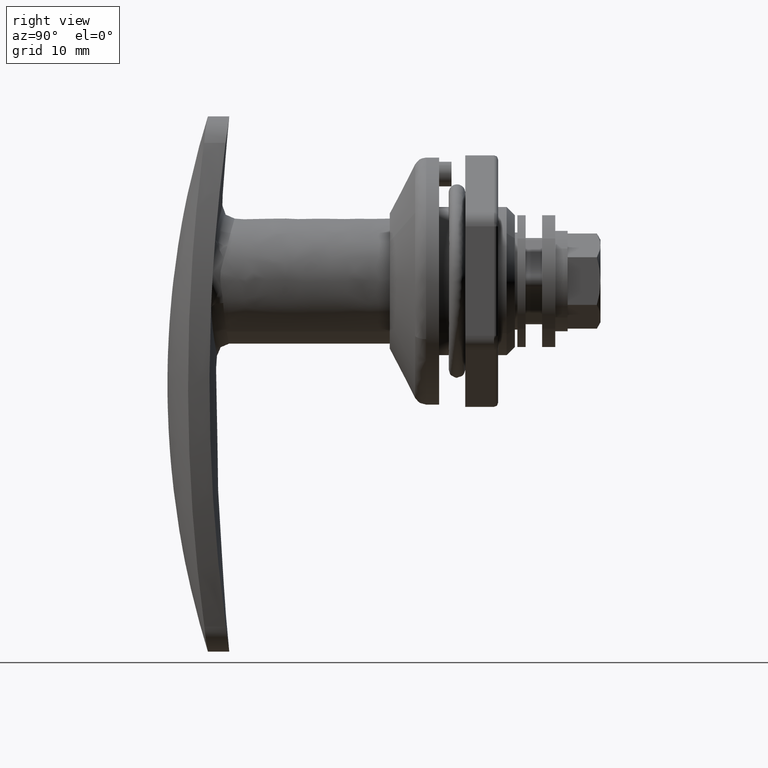
[diagram: clean part render]
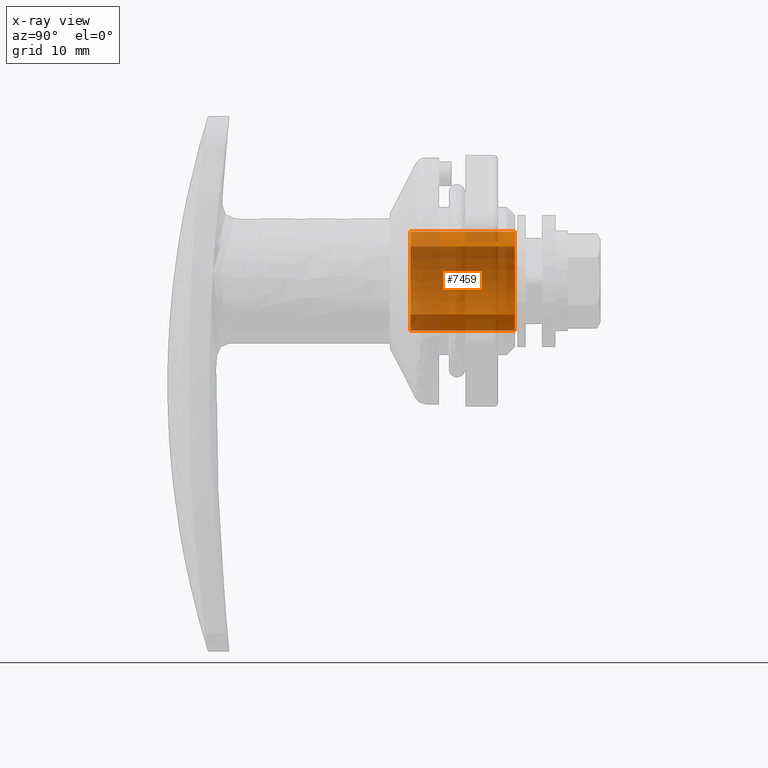
[diagram: x-ray — body ghosted, one internal face saturated and labeled with its STEP entity id]
A machine part, right view, then the same camera in x-ray: the body is ghosted and one INTERNAL B-rep face — a face not visible from any outside direction — is saturated and labeled: STEP entity #7459.
In plain terms, the highlighted face is a freeform B-spline surface patch.
Its self-contained STEP definition (entity closure, byte-faithful):
#7297=CARTESIAN_POINT('',(15.517500000000002,-4.299905833347363,4.184591954342180));
#7298=CARTESIAN_POINT('',(15.517500000000000,-4.180144609436389,4.307653411928088));
#7299=CARTESIAN_POINT('',(15.517500000000000,-4.053541245693960,4.423664020860743));
#7300=CARTESIAN_POINT('',(15.517499999999998,0.370122775166783,8.477205266554703));
#7301=CARTESIAN_POINT('',(15.517500000000000,4.423664020860743,4.053541245693960));
#7302=CARTESIAN_POINT('',(15.517499999999998,8.477205266554703,-0.370122775166783));
#7303=CARTESIAN_POINT('',(15.517500000000000,4.053541245693960,-4.423664020860743));
#7304=CARTESIAN_POINT('',(15.517499999999998,-0.370122775166783,-8.477205266554703));
#7305=CARTESIAN_POINT('',(15.517500000000000,-4.423664020860743,-4.053541245693960));
#7306=CARTESIAN_POINT('',(2.174562499999944,-4.299905833347363,4.184591954342180));
#7307=CARTESIAN_POINT('',(2.174562499999943,-4.180144609436389,4.307653411928088));
#7308=CARTESIAN_POINT('',(2.174562499999944,-4.053541245693960,4.423664020860743));
#7309=CARTESIAN_POINT('',(2.174562499999944,0.370122775166783,8.477205266554703));
#7310=CARTESIAN_POINT('',(2.174562499999944,4.423664020860743,4.053541245693960));
#7311=CARTESIAN_POINT('',(2.174562499999944,8.477205266554703,-0.370122775166783));
#7312=CARTESIAN_POINT('',(2.174562499999944,4.053541245693960,-4.423664020860743));
#7313=CARTESIAN_POINT('',(2.174562499999944,-0.370122775166783,-8.477205266554703));
#7314=CARTESIAN_POINT('',(2.174562499999944,-4.423664020860743,-4.053541245693960));
#7322=(BOUNDED_SURFACE()B_SPLINE_SURFACE(2,1,((#7297,#7306),(#7298,#7307),(#7299,#7308),(#7300,#7309),(#7301,#7310),(#7302,#7311),(#7303,#7312),(#7304,#7313),(#7305,#7314)),.UNSPECIFIED.,.F.,.F.,.U.)B_SPLINE_SURFACE_WITH_KNOTS((3,2,2,2,3),(2,2),(0.0,0.397645019878172,10.338770516832451,20.279896013786729,30.221021510741000),(0.0,13.342937500000060),.UNSPECIFIED.)GEOMETRIC_REPRESENTATION_ITEM()RATIONAL_B_SPLINE_SURFACE(((0.977505800795127,0.977505800795127),(0.988284271247462,0.988284271247462),(1.0,1.0),(0.707106781186548,0.707106781186548),(1.0,1.0),(0.707106781186548,0.707106781186548),(1.0,1.0),(0.707106781186548,0.707106781186548),(1.0,1.0)))REPRESENTATION_ITEM('')SURFACE());
#7323=CARTESIAN_POINT('',(15.199999999999999,0.0,6.0));
#7324=VERTEX_POINT('',#7323);
#7325=CARTESIAN_POINT('',(15.199999999999751,-4.299905718205324,4.184591894937329));
#7326=VERTEX_POINT('',#7325);
#7327=CARTESIAN_POINT('',(15.199999999999999,0.0,6.0));
#7328=CARTESIAN_POINT('',(15.200000000000040,-0.424467672618955,6.000067095287533));
#7329=CARTESIAN_POINT('',(15.199999999999870,-1.248399602522490,5.912210549357255));
#7330=CARTESIAN_POINT('',(15.199999999999850,-2.370802270925840,5.550073469835959));
#7331=CARTESIAN_POINT('',(15.199999999999880,-3.404948394419460,4.985944584329795));
#7332=CARTESIAN_POINT('',(15.199999999999701,-4.003916135543806,4.488831984891791));
#7333=CARTESIAN_POINT('',(15.199999999999751,-4.299905718205324,4.184591894937329));
#7334=B_SPLINE_CURVE_WITH_KNOTS('',3,(#7327,#7328,#7329,#7330,#7331,#7332,#7333),.UNSPECIFIED.,.F.,.U.,(4,1,1,1,4),(6.852791E-009,1.273396242282657,2.471883825434055,3.520565523340189,4.793961758768532),.UNSPECIFIED.);
#7335=EDGE_CURVE('',#7324,#7326,#7334,.T.);
#7336=ORIENTED_EDGE('',*,*,#7335,.T.);
#7337=CARTESIAN_POINT('',(2.499999999999945,-4.299905718517934,4.184591894616105));
#7338=VERTEX_POINT('',#7337);
#7339=CARTESIAN_POINT('',(15.199999999999751,-4.299905718205324,4.184591894937329));
#7340=CARTESIAN_POINT('',(2.499999999999945,-4.299905718517934,4.184591894616105));
#7341=QUASI_UNIFORM_CURVE('',1,(#7339,#7340),.UNSPECIFIED.,.F.,.U.);
#7342=EDGE_CURVE('',#7326,#7338,#7341,.T.);
#7343=ORIENTED_EDGE('',*,*,#7342,.T.);
#7344=CARTESIAN_POINT('',(2.499999999999945,0.0,6.0));
#7345=VERTEX_POINT('',#7344);
#7346=CARTESIAN_POINT('',(2.499999999999945,0.0,6.0));
#7347=CARTESIAN_POINT('',(2.499999999999942,-0.324589826507479,6.000020552062493));
#7348=CARTESIAN_POINT('',(2.499999999999950,-0.948795486600454,5.949226767049265));
#7349=CARTESIAN_POINT('',(2.499999999999946,-1.751925950248813,5.755061042708641));
#7350=CARTESIAN_POINT('',(2.499999999999943,-2.593590244484941,5.436333231344796));
#7351=CARTESIAN_POINT('',(2.499999999999941,-3.446786563827778,4.957006300138420));
#7352=CARTESIAN_POINT('',(2.499999999999953,-4.038723660203774,4.453020377927563));
#7353=CARTESIAN_POINT('',(2.499999999999945,-4.299905718517934,4.184591894616105));
#7354=B_SPLINE_CURVE_WITH_KNOTS('',3,(#7346,#7347,#7348,#7349,#7350,#7351,#7352,#7353),.UNSPECIFIED.,.F.,.U.,(4,1,1,1,1,4),(6.851919E-009,0.973772008683893,1.872648668017092,2.471883825664935,3.670377118583605,4.793961759216776),.UNSPECIFIED.);
#7355=EDGE_CURVE('',#7345,#7338,#7354,.T.);
#7356=ORIENTED_EDGE('',*,*,#7355,.F.);
#7357=CARTESIAN_POINT('',(2.499999999999945,5.999999999999981,0.000000495973088));
#7358=VERTEX_POINT('',#7357);
#7359=CARTESIAN_POINT('',(2.499999999999945,5.999999999999981,0.000000495973088));
#7360=CARTESIAN_POINT('',(2.499999999999945,6.000015298803461,0.343606049105662));
#7361=CARTESIAN_POINT('',(2.499999999999955,5.932412972354190,1.129017414033481));
#7362=CARTESIAN_POINT('',(2.499999999999925,5.609171153835491,2.243688417881025));
#7363=CARTESIAN_POINT('',(2.499999999999981,5.080800072388372,3.246869841662565));
#7364=CARTESIAN_POINT('',(2.499999999999905,4.509682843551666,3.987962432717692));
#7365=CARTESIAN_POINT('',(2.499999999999965,3.840907647167780,4.640556761082873));
#7366=CARTESIAN_POINT('',(2.499999999999977,3.098540581134117,5.170235579741299));
#7367=CARTESIAN_POINT('',(2.499999999999932,2.191740280949551,5.612808683581929));
#7368=CARTESIAN_POINT('',(2.499999999999959,1.178074992945418,5.920312187507284));
#7369=CARTESIAN_POINT('',(2.499999999999939,0.417243893421402,6.000062389458784));
#7370=CARTESIAN_POINT('',(2.499999999999945,0.0,6.0));
#7371=B_SPLINE_CURVE_WITH_KNOTS('',3,(#7359,#7360,#7361,#7362,#7363,#7364,#7365,#7366,#7367,#7368,#7369,#7370),.UNSPECIFIED.,.F.,.U.,(4,1,1,1,1,1,1,1,1,4),(0.000000021063524,1.030830894015276,2.356209713343733,3.460683416688604,4.417906080223474,5.154188173525714,6.258671475541747,7.142260035381124,8.173108537233475,9.424836817710549),.UNSPECIFIED.);
#7372=EDGE_CURVE('',#7358,#7345,#7371,.T.);
#7373=ORIENTED_EDGE('',*,*,#7372,.F.);
#7374=CARTESIAN_POINT('',(2.499999999999945,0.0,-6.0));
#7375=VERTEX_POINT('',#7374);
#7376=CARTESIAN_POINT('',(2.499999999999945,0.0,-6.0));
#7377=CARTESIAN_POINT('',(2.499999999999945,0.392699116578626,-6.000046730790312));
#7378=CARTESIAN_POINT('',(2.499999999999947,0.981724131965806,-5.941958320297916));
#7379=CARTESIAN_POINT('',(2.499999999999942,1.887534857615842,-5.715066684183644));
#7380=CARTESIAN_POINT('',(2.499999999999943,2.642347701373032,-5.413210880028341));
#7381=CARTESIAN_POINT('',(2.499999999999944,3.447079444636554,-4.937553745093624));
#7382=CARTESIAN_POINT('',(2.499999999999931,4.193107731623512,-4.332963511929682));
#7383=CARTESIAN_POINT('',(2.499999999999956,4.776776903368702,-3.664642695992018));
#7384=CARTESIAN_POINT('',(2.499999999999941,5.245775536736003,-2.943701699212045));
#7385=CARTESIAN_POINT('',(2.499999999999938,5.612812311483236,-2.191742708191711));
#7386=CARTESIAN_POINT('',(2.499999999999987,5.920311878621690,-1.178073908257564));
#7387=CARTESIAN_POINT('',(2.499999999999885,6.000062496218114,-0.417243817346963));
#7388=CARTESIAN_POINT('',(2.499999999999945,5.999999999999981,0.000000495973088));
#7389=B_SPLINE_CURVE_WITH_KNOTS('',3,(#7376,#7377,#7378,#7379,#7380,#7381,#7382,#7383,#7384,#7385,#7386,#7387,#7388),.UNSPECIFIED.,.F.,.U.,(4,1,1,1,1,1,1,1,1,1,4),(0.000000020892641,1.178091620826820,1.767153300659849,2.798003022770316,3.607951865652189,4.565163511228473,5.669621582577829,6.258671846869629,7.142260459105644,8.173109021947710,9.424837376791318),.UNSPECIFIED.);
#7390=EDGE_CURVE('',#7375,#7358,#7389,.T.);
#7391=ORIENTED_EDGE('',*,*,#7390,.F.);
#7392=CARTESIAN_POINT('',(2.499999999999945,-4.423664132847470,-4.053541306316780));
#7393=VERTEX_POINT('',#7392);
#7394=CARTESIAN_POINT('',(2.499999999999945,-4.423664132847470,-4.053541306316780));
#7395=CARTESIAN_POINT('',(2.499999999999953,-4.178648831007273,-4.320971592100964));
#7396=CARTESIAN_POINT('',(2.499999999999940,-3.582216951537230,-4.863757862707409));
#7397=CARTESIAN_POINT('',(2.499999999999943,-2.619552211651933,-5.437671634982742));
#7398=CARTESIAN_POINT('',(2.499999999999950,-1.398885019711293,-5.882861882397201));
#7399=CARTESIAN_POINT('',(2.499999999999927,-0.544080271364995,-6.000185138738281));
#7400=CARTESIAN_POINT('',(2.499999999999945,0.0,-6.0));
#7401=B_SPLINE_CURVE_WITH_KNOTS('',3,(#7394,#7395,#7396,#7397,#7398,#7399,#7400),.UNSPECIFIED.,.F.,.U.,(4,1,1,1,4),(5.132637E-009,1.088109569905894,2.409390667511655,3.342052271132352,4.974223225211484),.UNSPECIFIED.);
#7402=EDGE_CURVE('',#7393,#7375,#7401,.T.);
#7403=ORIENTED_EDGE('',*,*,#7402,.F.);
#7404=CARTESIAN_POINT('',(15.200000000000450,-4.423664133104578,-4.053541306036196));
#7405=VERTEX_POINT('',#7404);
#7406=CARTESIAN_POINT('',(15.200000000000450,-4.423664133104578,-4.053541306036196));
#7407=CARTESIAN_POINT('',(2.499999999999945,-4.423664132847470,-4.053541306316780));
#7408=QUASI_UNIFORM_CURVE('',1,(#7406,#7407),.UNSPECIFIED.,.F.,.U.);
#7409=EDGE_CURVE('',#7405,#7393,#7408,.T.);
#7410=ORIENTED_EDGE('',*,*,#7409,.F.);
#7411=CARTESIAN_POINT('',(15.199999999999999,0.0,-6.0));
#7412=VERTEX_POINT('',#7411);
#7413=CARTESIAN_POINT('',(15.200000000000450,-4.423664133104578,-4.053541306036196));
#7414=CARTESIAN_POINT('',(15.200000000000420,-4.178653373425258,-4.320978544815920));
#7415=CARTESIAN_POINT('',(15.200000000000340,-3.659155846437511,-4.793690184083836));
#7416=CARTESIAN_POINT('',(15.200000000000410,-2.845909242750198,-5.307508061869021));
#7417=CARTESIAN_POINT('',(15.200000000000101,-2.037960629022516,-5.663000824513346));
#7418=CARTESIAN_POINT('',(15.200000000000241,-1.113988768319029,-5.927205746952376));
#7419=CARTESIAN_POINT('',(15.200000000000010,-0.414521808315834,-6.000067080443095));
#7420=CARTESIAN_POINT('',(15.199999999999999,0.0,-6.0));
#7421=B_SPLINE_CURVE_WITH_KNOTS('',3,(#7413,#7414,#7415,#7416,#7417,#7418,#7419,#7420),.UNSPECIFIED.,.F.,.U.,(4,1,1,1,1,4),(5.133062E-009,1.088109569989411,2.098505038790866,2.875718191930792,3.730667420479719,4.974223225592053),.UNSPECIFIED.);
#7422=EDGE_CURVE('',#7405,#7412,#7421,.T.);
#7423=ORIENTED_EDGE('',*,*,#7422,.T.);
#7424=CARTESIAN_POINT('',(15.199999999999999,5.999999999999981,0.000000495973088));
#7425=VERTEX_POINT('',#7424);
#7426=CARTESIAN_POINT('',(15.199999999999999,0.0,-6.0));
#7427=CARTESIAN_POINT('',(15.199999999999990,0.392699090364011,-6.000046755197558));
#7428=CARTESIAN_POINT('',(15.200000000000021,0.981724195135619,-5.941958281684049));
#7429=CARTESIAN_POINT('',(15.199999999999971,1.887534715601480,-5.715066692179008));
#7430=CARTESIAN_POINT('',(15.200000000000051,2.642347872943877,-5.413210965364496));
#7431=CARTESIAN_POINT('',(15.199999999999960,3.447079322243881,-4.937553683409319));
#7432=CARTESIAN_POINT('',(15.199999999999919,4.193107800965844,-4.332963548190648));
#7433=CARTESIAN_POINT('',(15.200000000000060,4.776776881539501,-3.664642684651208));
#7434=CARTESIAN_POINT('',(15.199999999999971,5.245775539434880,-2.943701700775924));
#7435=CARTESIAN_POINT('',(15.199999999999950,5.612812311802077,-2.191742708192658));
#7436=CARTESIAN_POINT('',(15.200000000000280,5.920311878414275,-1.178073908256949));
#7437=CARTESIAN_POINT('',(15.199999999999619,6.000062496289622,-0.417243817347175));
#7438=CARTESIAN_POINT('',(15.199999999999999,5.999999999999981,0.000000495973088));
#7439=B_SPLINE_CURVE_WITH_KNOTS('',3,(#7426,#7427,#7428,#7429,#7430,#7431,#7432,#7433,#7434,#7435,#7436,#7437,#7438),.UNSPECIFIED.,.F.,.U.,(4,1,1,1,1,1,1,1,1,1,4),(0.000000020892641,1.178091620826820,1.767153300659849,2.798003022770316,3.607951865652189,4.565163511228473,5.669621582577829,6.258671846869629,7.142260459105644,8.173109021947710,9.424837376791318),.UNSPECIFIED.);
#7440=EDGE_CURVE('',#7412,#7425,#7439,.T.);
#7441=ORIENTED_EDGE('',*,*,#7440,.T.);
#7442=CARTESIAN_POINT('',(15.199999999999999,5.999999999999981,0.000000495973088));
#7443=CARTESIAN_POINT('',(15.199999999999990,6.000015298810243,0.343606049104226));
#7444=CARTESIAN_POINT('',(15.200000000000060,5.932412972319549,1.129017414040818));
#7445=CARTESIAN_POINT('',(15.199999999999889,5.609171153917719,2.243688417863608));
#7446=CARTESIAN_POINT('',(15.200000000000211,5.080800072224930,3.246869841697183));
#7447=CARTESIAN_POINT('',(15.199999999999759,4.509682846560472,3.987962432010978));
#7448=CARTESIAN_POINT('',(15.200000000000131,3.840907629350569,4.640556765292930));
#7449=CARTESIAN_POINT('',(15.200000000000200,3.098540611615516,5.170235571782511));
#7450=CARTESIAN_POINT('',(15.199999999999919,2.191740300850958,5.612808684231842));
#7451=CARTESIAN_POINT('',(15.200000000000090,1.178074694439890,5.920312224858193));
#7452=CARTESIAN_POINT('',(15.199999999999971,0.417244167461348,6.000062328857405));
#7453=CARTESIAN_POINT('',(15.199999999999999,0.0,6.0));
#7454=B_SPLINE_CURVE_WITH_KNOTS('',3,(#7442,#7443,#7444,#7445,#7446,#7447,#7448,#7449,#7450,#7451,#7452,#7453),.UNSPECIFIED.,.F.,.U.,(4,1,1,1,1,1,1,1,1,4),(0.000000021063524,1.030830894015276,2.356209713343733,3.460683416688604,4.417906080223474,5.154188173525714,6.258671475541747,7.142260035381124,8.173108537233475,9.424836817710549),.UNSPECIFIED.);
#7455=EDGE_CURVE('',#7425,#7324,#7454,.T.);
#7456=ORIENTED_EDGE('',*,*,#7455,.T.);
#7457=EDGE_LOOP('',(#7336,#7343,#7356,#7373,#7391,#7403,#7410,#7423,#7441,#7456));
#7458=FACE_OUTER_BOUND('',#7457,.T.);
#7459=ADVANCED_FACE('',(#7458),#7322,.F.);